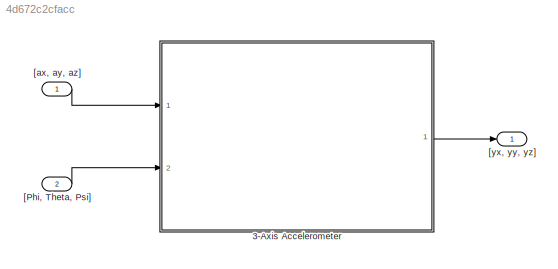
MODEL slx_4d672c2cfacc
KIND model
CONFIG AbsTol = auto
CONFIG EnableMultiTasking = off
CONFIG FixedStep = 0.0001
CONFIG MaxStep = auto
CONFIG MinStep = auto
CONFIG RelTol = 1e-3
CONFIG SampleTimeConstraint = Unconstrained
CONFIG Solver = FixedStepAuto
CONFIG SolverName = FixedStepAuto
CONFIG StartTime = 0.0
CONFIG StopTime = 10.0
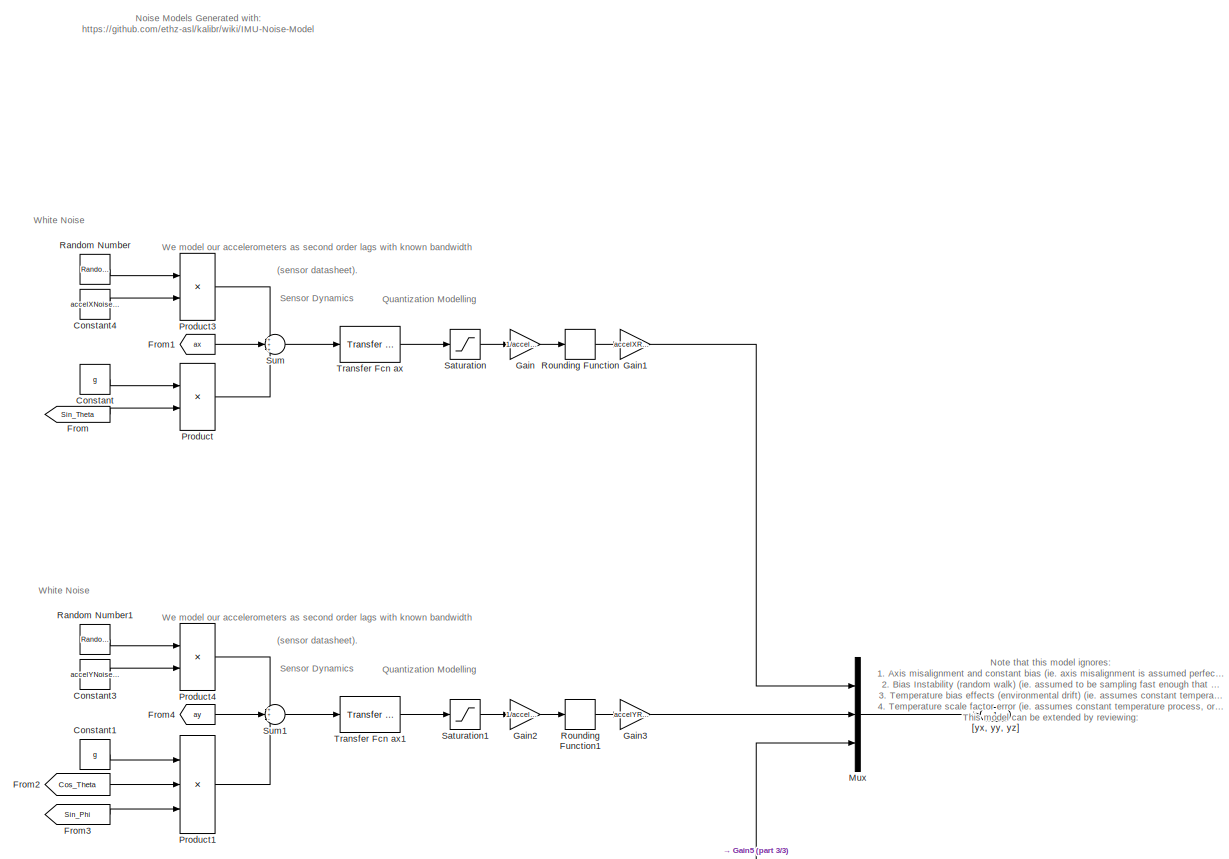
[diagram: 3-Axis Accelerometer - part 1/3, central region]
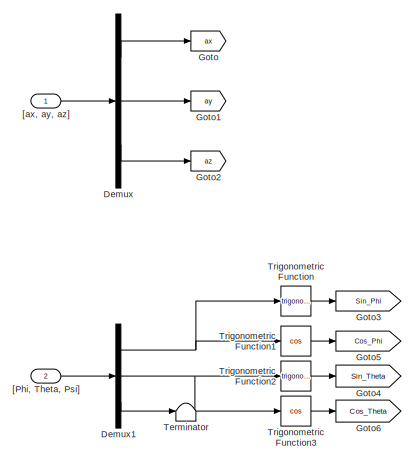
[diagram: 3-Axis Accelerometer - part 2/3, middle left region]
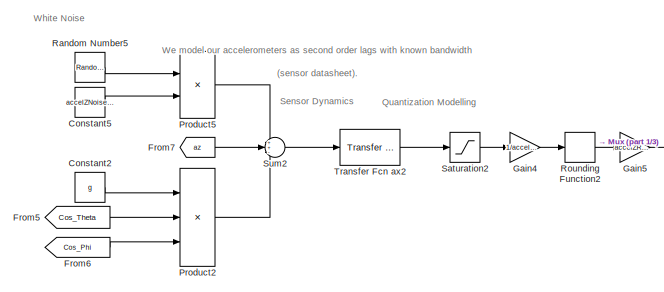
[diagram: 3-Axis Accelerometer - part 3/3, bottom center region]
BLOCK [SubSystem] 3-Axis Accelerometer
  Ports = [2, 1]
  RequestExecContextInheritance = off
BLOCK [Constant] 3-Axis Accelerometer/Constant
  Value = g
BLOCK [Constant] 3-Axis Accelerometer/Constant1
  Value = g
BLOCK [Constant] 3-Axis Accelerometer/Constant2
  Value = g
BLOCK [Constant] 3-Axis Accelerometer/Constant3
  Value = accelYNoiseDensity*(1/sqrt(SampleTime))
BLOCK [Constant] 3-Axis Accelerometer/Constant4
  Value = accelXNoiseDensity*(1/sqrt(SampleTime))
BLOCK [Constant] 3-Axis Accelerometer/Constant5
  Value = accelZNoiseDensity*(1/sqrt(SampleTime))
BLOCK [Demux] 3-Axis Accelerometer/Demux
  DisplayOption = bar
  Outputs = 3
  Ports = [1, 3]
BLOCK [Demux] 3-Axis Accelerometer/Demux1
  DisplayOption = bar
  Outputs = 3
  Ports = [1, 3]
BLOCK [From] 3-Axis Accelerometer/From
  GotoTag = Sin_Theta
BLOCK [From] 3-Axis Accelerometer/From1
  GotoTag = ax
BLOCK [From] 3-Axis Accelerometer/From2
  GotoTag = Cos_Theta
BLOCK [From] 3-Axis Accelerometer/From3
  GotoTag = Sin_Phi
BLOCK [From] 3-Axis Accelerometer/From4
  GotoTag = ay
BLOCK [From] 3-Axis Accelerometer/From5
  GotoTag = Cos_Theta
BLOCK [From] 3-Axis Accelerometer/From6
  GotoTag = Cos_Phi
BLOCK [From] 3-Axis Accelerometer/From7
  GotoTag = az
BLOCK [Gain] 3-Axis Accelerometer/Gain
  Gain = 1/accelXResolution
  OutDataTypeStr = Inherit: Inherit via internal rule
  ParamDataTypeStr = Inherit: Inherit via internal rule
  SaturateOnIntegerOverflow = off
BLOCK [Gain] 3-Axis Accelerometer/Gain1
  Gain = accelXResolution
  OutDataTypeStr = Inherit: Inherit via internal rule
  ParamDataTypeStr = Inherit: Inherit via internal rule
  SaturateOnIntegerOverflow = off
BLOCK [Gain] 3-Axis Accelerometer/Gain2
  Gain = 1/accelYResolution
  OutDataTypeStr = Inherit: Inherit via internal rule
  ParamDataTypeStr = Inherit: Inherit via internal rule
  SaturateOnIntegerOverflow = off
BLOCK [Gain] 3-Axis Accelerometer/Gain3
  Gain = accelYResolution
  OutDataTypeStr = Inherit: Inherit via internal rule
  ParamDataTypeStr = Inherit: Inherit via internal rule
  SaturateOnIntegerOverflow = off
BLOCK [Gain] 3-Axis Accelerometer/Gain4
  Gain = 1/accelZResolution
  OutDataTypeStr = Inherit: Inherit via internal rule
  ParamDataTypeStr = Inherit: Inherit via internal rule
  SaturateOnIntegerOverflow = off
BLOCK [Gain] 3-Axis Accelerometer/Gain5
  Gain = accelZResolution
  OutDataTypeStr = Inherit: Inherit via internal rule
  ParamDataTypeStr = Inherit: Inherit via internal rule
  SaturateOnIntegerOverflow = off
BLOCK [Goto] 3-Axis Accelerometer/Goto
  GotoTag = ax
BLOCK [Goto] 3-Axis Accelerometer/Goto1
  GotoTag = ay
BLOCK [Goto] 3-Axis Accelerometer/Goto2
  GotoTag = az
BLOCK [Goto] 3-Axis Accelerometer/Goto3
  GotoTag = Sin_Phi
BLOCK [Goto] 3-Axis Accelerometer/Goto4
  GotoTag = Sin_Theta
BLOCK [Goto] 3-Axis Accelerometer/Goto5
  GotoTag = Cos_Phi
BLOCK [Goto] 3-Axis Accelerometer/Goto6
  GotoTag = Cos_Theta
BLOCK [Mux] 3-Axis Accelerometer/Mux
  DisplayOption = bar
  Inputs = 3
  Ports = [3, 1]
BLOCK [Product] 3-Axis Accelerometer/Product
  InputSameDT = off
  OutDataTypeStr = Inherit: Inherit via internal rule
  Ports = [2, 1]
  RndMeth = Floor
  SaturateOnIntegerOverflow = off
BLOCK [Product] 3-Axis Accelerometer/Product1
  InputSameDT = off
  Inputs = 3
  OutDataTypeStr = Inherit: Inherit via internal rule
  Ports = [3, 1]
  RndMeth = Floor
  SaturateOnIntegerOverflow = off
BLOCK [Product] 3-Axis Accelerometer/Product2
  InputSameDT = off
  Inputs = 3
  OutDataTypeStr = Inherit: Inherit via internal rule
  Ports = [3, 1]
  RndMeth = Floor
  SaturateOnIntegerOverflow = off
BLOCK [Product] 3-Axis Accelerometer/Product3
  InputSameDT = off
  OutDataTypeStr = Inherit: Inherit via internal rule
  Ports = [2, 1]
  RndMeth = Floor
  SaturateOnIntegerOverflow = off
BLOCK [Product] 3-Axis Accelerometer/Product4
  InputSameDT = off
  OutDataTypeStr = Inherit: Inherit via internal rule
  Ports = [2, 1]
  RndMeth = Floor
  SaturateOnIntegerOverflow = off
BLOCK [Product] 3-Axis Accelerometer/Product5
  InputSameDT = off
  OutDataTypeStr = Inherit: Inherit via internal rule
  Ports = [2, 1]
  RndMeth = Floor
  SaturateOnIntegerOverflow = off
BLOCK [RandomNumber] 3-Axis Accelerometer/Random Number
  SampleTime = SampleTime
BLOCK [RandomNumber] 3-Axis Accelerometer/Random Number1
  SampleTime = SampleTime
BLOCK [RandomNumber] 3-Axis Accelerometer/Random Number5
  SampleTime = SampleTime
BLOCK [Rounding] 3-Axis Accelerometer/Rounding Function
BLOCK [Rounding] 3-Axis Accelerometer/Rounding Function1
BLOCK [Rounding] 3-Axis Accelerometer/Rounding Function2
BLOCK [Saturate] 3-Axis Accelerometer/Saturation
  InputPortMap = u0
  LowerLimit = accelXLowerSaturation
  Ports = [1, 1]
  UpperLimit = accelXUpperSaturation
  ZeroCross = off
BLOCK [Saturate] 3-Axis Accelerometer/Saturation1
  InputPortMap = u0
  LowerLimit = accelYLowerSaturation
  Ports = [1, 1]
  UpperLimit = accelYUpperSaturation
  ZeroCross = off
BLOCK [Saturate] 3-Axis Accelerometer/Saturation2
  InputPortMap = u0
  LowerLimit = accelZLowerSaturation
  Ports = [1, 1]
  UpperLimit = accelZUpperSaturation
  ZeroCross = off
BLOCK [Sum] 3-Axis Accelerometer/Sum
  IconShape = round
  InputSameDT = off
  Inputs = +++
  OutDataTypeStr = Inherit: Inherit via internal rule
  Ports = [3, 1]
  SaturateOnIntegerOverflow = off
BLOCK [Sum] 3-Axis Accelerometer/Sum1
  IconShape = round
  InputSameDT = off
  Inputs = ++-
  OutDataTypeStr = Inherit: Inherit via internal rule
  Ports = [3, 1]
  SaturateOnIntegerOverflow = off
BLOCK [Sum] 3-Axis Accelerometer/Sum2
  IconShape = round
  InputSameDT = off
  Inputs = ++-
  OutDataTypeStr = Inherit: Inherit via internal rule
  Ports = [3, 1]
  SaturateOnIntegerOverflow = off
BLOCK [Terminator] 3-Axis Accelerometer/Terminator
BLOCK [Reference] 3-Axis Accelerometer/Transfer Fcn ax  REF=simulink_extras/Additional
Linear/Transfer Fcn
(with initial outputs)
  Ports = [1, 1]
  SourceBlock = simulink_extras/Additional\nLinear/Transfer Fcn\n(with initial outputs)
  SourceProductBaseCode = SL
  SourceProductName = Simulink
  SourceType = Transfer Function with Initial Outputs
BLOCK [Reference] 3-Axis Accelerometer/Transfer Fcn ax1  REF=simulink_extras/Additional
Linear/Transfer Fcn
(with initial outputs)
  Ports = [1, 1]
  SourceBlock = simulink_extras/Additional\nLinear/Transfer Fcn\n(with initial outputs)
  SourceProductBaseCode = SL
  SourceProductName = Simulink
  SourceType = Transfer Function with Initial Outputs
BLOCK [Reference] 3-Axis Accelerometer/Transfer Fcn ax2  REF=simulink_extras/Additional
Linear/Transfer Fcn
(with initial outputs)
  Ports = [1, 1]
  SourceBlock = simulink_extras/Additional\nLinear/Transfer Fcn\n(with initial outputs)
  SourceProductBaseCode = SL
  SourceProductName = Simulink
  SourceType = Transfer Function with Initial Outputs
BLOCK [Trigonometry] 3-Axis Accelerometer/Trigonometric Function
  Ports = [1, 1]
BLOCK [Trigonometry] 3-Axis Accelerometer/Trigonometric Function1
  Operator = cos
  Ports = [1, 1]
BLOCK [Trigonometry] 3-Axis Accelerometer/Trigonometric Function2
  Ports = [1, 1]
BLOCK [Trigonometry] 3-Axis Accelerometer/Trigonometric Function3
  Operator = cos
  Ports = [1, 1]
BLOCK [Inport] 3-Axis Accelerometer/[Phi, Theta, Psi]
  IconDisplay = Port number
  Port = 2
BLOCK [Inport] 3-Axis Accelerometer/[ax, ay, az]
  IconDisplay = Port number
BLOCK [Outport] 3-Axis Accelerometer/[yx, yy, yz]
  IconDisplay = Port number
BLOCK [Inport] [Phi, Theta, Psi]
  IconDisplay = Port number
  Port = 2
BLOCK [Inport] [ax, ay, az]
  IconDisplay = Port number
BLOCK [Outport] [yx, yy, yz]
  IconDisplay = Port number
ANNOTATION 3-Axis Accelerometer: Noise Models Generated with: https://github.com/ethz-asl/kalibr/wiki/IMU-Noise-Model
ANNOTATION 3-Axis Accelerometer: Note that this model ignores: 1. Axis misalignment and constant bias (ie. axis misalignment is assumed perfect, and constant bias removed at startup) 2. Bias Instability (random walk) (ie. assumed to be sampling fast enough that this isn't the dominant noise) 3. Temperature bias effects (environmental drift) (ie. assumes constant temperature process, or adjusted for indepedently) 4. Temperature sc...<+248ch>
ANNOTATION 3-Axis Accelerometer: Quantization Modelling
ANNOTATION 3-Axis Accelerometer: Sensor Dynamics
ANNOTATION 3-Axis Accelerometer: We model our accelerometers as second order lags with known bandwidth (sensor datasheet).
ANNOTATION 3-Axis Accelerometer: White Noise
LINE 3-Axis Accelerometer/Constant1:1 -> 3-Axis Accelerometer/Product1:1
LINE 3-Axis Accelerometer/Constant2:1 -> 3-Axis Accelerometer/Product2:1
LINE 3-Axis Accelerometer/Constant3:1 -> 3-Axis Accelerometer/Product4:2
LINE 3-Axis Accelerometer/Constant4:1 -> 3-Axis Accelerometer/Product3:2
LINE 3-Axis Accelerometer/Constant5:1 -> 3-Axis Accelerometer/Product5:2
LINE 3-Axis Accelerometer/Constant:1 -> 3-Axis Accelerometer/Product:1
NET 3-Axis Accelerometer/Demux1:1 -> 3-Axis Accelerometer/Trigonometric Function1:1, 3-Axis Accelerometer/Trigonometric Function:1
NET 3-Axis Accelerometer/Demux1:2 -> 3-Axis Accelerometer/Trigonometric Function2:1, 3-Axis Accelerometer/Trigonometric Function3:1
LINE 3-Axis Accelerometer/Demux1:3 -> 3-Axis Accelerometer/Terminator:1
LINE 3-Axis Accelerometer/Demux:1 -> 3-Axis Accelerometer/Goto:1
LINE 3-Axis Accelerometer/Demux:2 -> 3-Axis Accelerometer/Goto1:1
LINE 3-Axis Accelerometer/Demux:3 -> 3-Axis Accelerometer/Goto2:1
LINE 3-Axis Accelerometer/From1:1 -> 3-Axis Accelerometer/Sum:2
LINE 3-Axis Accelerometer/From2:1 -> 3-Axis Accelerometer/Product1:2
LINE 3-Axis Accelerometer/From3:1 -> 3-Axis Accelerometer/Product1:3
LINE 3-Axis Accelerometer/From4:1 -> 3-Axis Accelerometer/Sum1:2
LINE 3-Axis Accelerometer/From5:1 -> 3-Axis Accelerometer/Product2:2
LINE 3-Axis Accelerometer/From6:1 -> 3-Axis Accelerometer/Product2:3
LINE 3-Axis Accelerometer/From7:1 -> 3-Axis Accelerometer/Sum2:2
LINE 3-Axis Accelerometer/From:1 -> 3-Axis Accelerometer/Product:2
LINE 3-Axis Accelerometer/Gain1:1 -> 3-Axis Accelerometer/Mux:1
LINE 3-Axis Accelerometer/Gain2:1 -> 3-Axis Accelerometer/Rounding Function1:1
LINE 3-Axis Accelerometer/Gain3:1 -> 3-Axis Accelerometer/Mux:2
LINE 3-Axis Accelerometer/Gain4:1 -> 3-Axis Accelerometer/Rounding Function2:1
LINE 3-Axis Accelerometer/Gain5:1 -> 3-Axis Accelerometer/Mux:3
LINE 3-Axis Accelerometer/Gain:1 -> 3-Axis Accelerometer/Rounding Function:1
LINE 3-Axis Accelerometer/Mux:1 -> 3-Axis Accelerometer/[yx, yy, yz]:1
LINE 3-Axis Accelerometer/Product1:1 -> 3-Axis Accelerometer/Sum1:3
LINE 3-Axis Accelerometer/Product2:1 -> 3-Axis Accelerometer/Sum2:3
LINE 3-Axis Accelerometer/Product3:1 -> 3-Axis Accelerometer/Sum:1
LINE 3-Axis Accelerometer/Product4:1 -> 3-Axis Accelerometer/Sum1:1
LINE 3-Axis Accelerometer/Product5:1 -> 3-Axis Accelerometer/Sum2:1
LINE 3-Axis Accelerometer/Product:1 -> 3-Axis Accelerometer/Sum:3
LINE 3-Axis Accelerometer/Random Number1:1 -> 3-Axis Accelerometer/Product4:1
LINE 3-Axis Accelerometer/Random Number5:1 -> 3-Axis Accelerometer/Product5:1
LINE 3-Axis Accelerometer/Random Number:1 -> 3-Axis Accelerometer/Product3:1
LINE 3-Axis Accelerometer/Rounding Function1:1 -> 3-Axis Accelerometer/Gain3:1
LINE 3-Axis Accelerometer/Rounding Function2:1 -> 3-Axis Accelerometer/Gain5:1
LINE 3-Axis Accelerometer/Rounding Function:1 -> 3-Axis Accelerometer/Gain1:1
LINE 3-Axis Accelerometer/Saturation1:1 -> 3-Axis Accelerometer/Gain2:1
LINE 3-Axis Accelerometer/Saturation2:1 -> 3-Axis Accelerometer/Gain4:1
LINE 3-Axis Accelerometer/Saturation:1 -> 3-Axis Accelerometer/Gain:1
LINE 3-Axis Accelerometer/Sum1:1 -> 3-Axis Accelerometer/Transfer Fcn ax1:1
LINE 3-Axis Accelerometer/Sum2:1 -> 3-Axis Accelerometer/Transfer Fcn ax2:1
LINE 3-Axis Accelerometer/Sum:1 -> 3-Axis Accelerometer/Transfer Fcn ax:1
LINE 3-Axis Accelerometer/Transfer Fcn ax1:1 -> 3-Axis Accelerometer/Saturation1:1
LINE 3-Axis Accelerometer/Transfer Fcn ax2:1 -> 3-Axis Accelerometer/Saturation2:1
LINE 3-Axis Accelerometer/Transfer Fcn ax:1 -> 3-Axis Accelerometer/Saturation:1
LINE 3-Axis Accelerometer/Trigonometric Function1:1 -> 3-Axis Accelerometer/Goto5:1
LINE 3-Axis Accelerometer/Trigonometric Function2:1 -> 3-Axis Accelerometer/Goto4:1
LINE 3-Axis Accelerometer/Trigonometric Function3:1 -> 3-Axis Accelerometer/Goto6:1
LINE 3-Axis Accelerometer/Trigonometric Function:1 -> 3-Axis Accelerometer/Goto3:1
LINE 3-Axis Accelerometer/[Phi, Theta, Psi]:1 -> 3-Axis Accelerometer/Demux1:1
LINE 3-Axis Accelerometer/[ax, ay, az]:1 -> 3-Axis Accelerometer/Demux:1
LINE 3-Axis Accelerometer:1 -> [yx, yy, yz]:1
LINE [Phi, Theta, Psi]:1 -> 3-Axis Accelerometer:2
LINE [ax, ay, az]:1 -> 3-Axis Accelerometer:1
note: NET lines group one-source signal fan-out (src -> all destinations, sorted); 1:1 wires keep LINE
